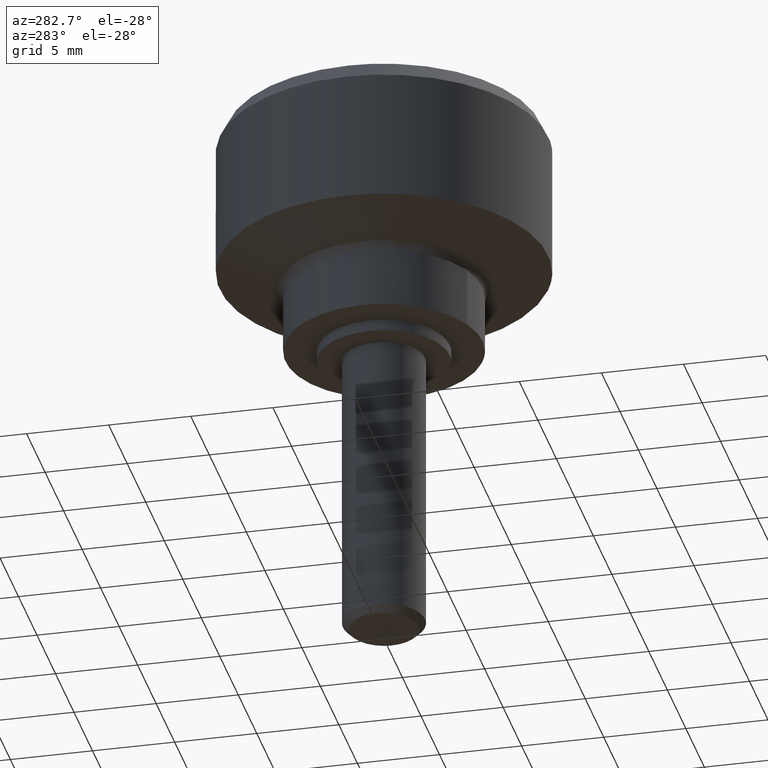
[diagram: clean part render]
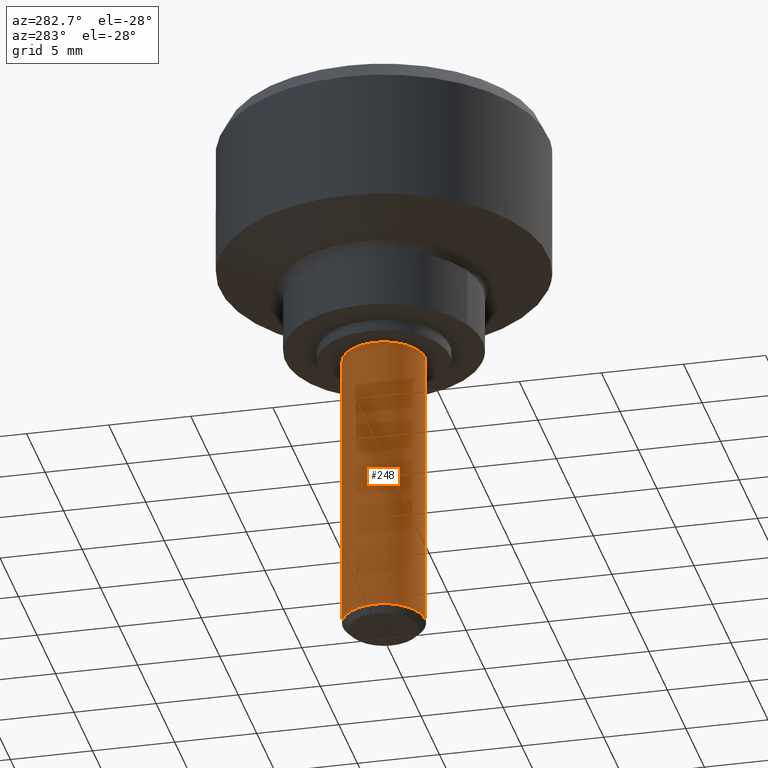
[diagram: same view with one face highlighted and labeled with its STEP entity id]
A machine part, auxiliary view. The second image highlights one B-rep face of the part: STEP entity #248.
In plain terms, the highlighted face is a freeform B-spline surface patch.
Its self-contained STEP definition (entity closure, byte-faithful):
#62=CARTESIAN_POINT('',(0.285251661908175,2.483672983582706,-17.599997999999999));
#63=VERTEX_POINT('',#62);
#79=CARTESIAN_POINT('',(0.285251661873230,2.483672983586720,5.917144E-016));
#80=VERTEX_POINT('',#79);
#81=CARTESIAN_POINT('',(0.285251661873230,2.483672983586720,5.917144E-016));
#82=CARTESIAN_POINT('',(0.285251661908175,2.483672983582706,-17.599997999999999));
#83=QUASI_UNIFORM_CURVE('',1,(#81,#82),.UNSPECIFIED.,.F.,.U.);
#84=EDGE_CURVE('',#80,#63,#83,.T.);
#101=CARTESIAN_POINT('',(0.152621348876395,-2.495336996052266,6.106227E-016));
#102=VERTEX_POINT('',#101);
#116=CARTESIAN_POINT('',(0.174384544100532,-2.493815165194874,-17.599997999997129));
#117=VERTEX_POINT('',#116);
#118=CARTESIAN_POINT('',(0.152621348876395,-2.495336996052266,6.106227E-016));
#119=CARTESIAN_POINT('',(0.174384544100532,-2.493815165194874,-17.599997999997129));
#120=QUASI_UNIFORM_CURVE('',1,(#118,#119),.UNSPECIFIED.,.F.,.U.);
#121=EDGE_CURVE('',#102,#117,#120,.T.);
#139=CARTESIAN_POINT('',(0.211333952939747,-2.491745979351895,0.439999950000001));
#140=CARTESIAN_POINT('',(0.182121404675547,-2.493532695345005,0.439999950000001));
#141=CARTESIAN_POINT('',(-2.342715647217524,-2.647958344891809,0.439999950000000));
#142=CARTESIAN_POINT('',(-2.495336996054667,-0.152621348837143,0.439999950000000));
#143=CARTESIAN_POINT('',(-2.647958344891809,2.342715647217524,0.439999950000000));
#144=CARTESIAN_POINT('',(-0.152621348837143,2.495336996054667,0.439999950000000));
#145=CARTESIAN_POINT('',(0.066828045241367,2.508759095986944,0.439999950000001));
#146=CARTESIAN_POINT('',(0.305203193717239,2.481381535536763,0.439999950000001));
#147=CARTESIAN_POINT('',(0.325255889499010,2.479078468734436,0.439999950000000));
#148=CARTESIAN_POINT('',(0.211333952939747,-2.491745979351895,-18.050997948750016));
#149=CARTESIAN_POINT('',(0.182121404675547,-2.493532695345005,-18.050997948750005));
#150=CARTESIAN_POINT('',(-2.342715647217524,-2.647958344891809,-18.050997948750005));
#151=CARTESIAN_POINT('',(-2.495336996054667,-0.152621348837143,-18.050997948750009));
#152=CARTESIAN_POINT('',(-2.647958344891809,2.342715647217524,-18.050997948750005));
#153=CARTESIAN_POINT('',(-0.152621348837143,2.495336996054667,-18.050997948750009));
#154=CARTESIAN_POINT('',(0.066828045241367,2.508759095986944,-18.050997948749998));
#155=CARTESIAN_POINT('',(0.305203193717239,2.481381535536763,-18.050997948749998));
#156=CARTESIAN_POINT('',(0.325255889499010,2.479078468734436,-18.050997948749998));
#164=(BOUNDED_SURFACE()B_SPLINE_SURFACE(2,1,((#139,#148),(#140,#149),(#141,#150),(#142,#151),(#143,#152),(#144,#153),(#145,#154),(#146,#155),(#147,#156)),.UNSPECIFIED.,.F.,.F.,.U.)B_SPLINE_SURFACE_WITH_KNOTS((3,1,2,2,1,3),(2,2),(0.0,0.069592886428294,4.211728510159243,8.353864133890193,8.850920408737908,8.894954837716457),(0.0,18.490997898750010),.UNSPECIFIED.)GEOMETRIC_REPRESENTATION_ITEM()RATIONAL_B_SPLINE_SURFACE(((1.009841920383158,1.009841920383158),(1.004920960191579,1.004920960191579),(0.707106781186548,0.707106781186548),(1.0,1.0),(0.707106781186548,0.707106781186548),(1.0,1.0),(0.964852813742386,0.964852813742386),(0.935774536893031,0.935774536893031),(0.933408121599464,0.933408121599464)))REPRESENTATION_ITEM('')SURFACE());
#165=CARTESIAN_POINT('',(-0.196147739363922,2.492293334335082,-17.599997999994269));
#166=VERTEX_POINT('',#165);
#167=CARTESIAN_POINT('',(-0.196147739363922,2.492293334335082,-17.599997999994265));
#168=CARTESIAN_POINT('',(-0.098225267563237,2.500000000000000,-17.599997999999999));
#169=CARTESIAN_POINT('',(0.0,2.500000000000000,-17.599997999999999));
#170=CARTESIAN_POINT('',(0.143093087621069,2.500000000000000,-17.599998000000003));
#171=CARTESIAN_POINT('',(0.285251661908175,2.483672983582706,-17.599997999999999));
#179=(BOUNDED_CURVE()B_SPLINE_CURVE(2,(#167,#168,#169,#170,#171),.UNSPECIFIED.,.F.,.U.)B_SPLINE_CURVE_WITH_KNOTS((3,2,3),(0.236331300626733,0.250000000000000,0.269767755884414),.UNSPECIFIED.)CURVE()GEOMETRIC_REPRESENTATION_ITEM()RATIONAL_B_SPLINE_CURVE((0.969723356159224,0.983986122574282,1.0,0.976840633401181,0.957343736445268))REPRESENTATION_ITEM(''));
#180=EDGE_CURVE('',#166,#63,#179,.T.);
#181=ORIENTED_EDGE('',*,*,#180,.F.);
#182=CARTESIAN_POINT('',(-2.500000000000000,0.0,-17.599997999999999));
#183=VERTEX_POINT('',#182);
#184=CARTESIAN_POINT('',(-2.500000000000000,0.0,-17.599997999999999));
#185=CARTESIAN_POINT('',(-2.500000000000000,2.310976229063931,-17.599997999999999));
#186=CARTESIAN_POINT('',(-0.196147739363922,2.492293334335082,-17.599997999994269));
#194=(BOUNDED_CURVE()B_SPLINE_CURVE(2,(#184,#185,#186),.UNSPECIFIED.,.F.,.U.)B_SPLINE_CURVE_WITH_KNOTS((3,3),(0.0,0.236331300626734),.UNSPECIFIED.)CURVE()GEOMETRIC_REPRESENTATION_ITEM()RATIONAL_B_SPLINE_CURVE((1.0,0.723120658612265,0.969723356159224))REPRESENTATION_ITEM(''));
#195=EDGE_CURVE('',#183,#166,#194,.T.);
#196=ORIENTED_EDGE('',*,*,#195,.F.);
#197=CARTESIAN_POINT('',(0.174384544100532,-2.493815165194874,-17.599997999997129));
#198=CARTESIAN_POINT('',(0.087295391576163,-2.499906585699807,-17.599997999997179));
#199=CARTESIAN_POINT('',(-0.000006416222384,-2.499908243745854,-17.599997999997228));
#200=CARTESIAN_POINT('',(-2.500003096081481,-2.499955723972427,-17.599997999998664));
#201=CARTESIAN_POINT('',(-2.500000000000000,0.0,-17.599997999999999));
#209=(BOUNDED_CURVE()B_SPLINE_CURVE(2,(#197,#198,#199,#200,#201),.UNSPECIFIED.,.F.,.U.)B_SPLINE_CURVE_WITH_KNOTS((3,2,3),(0.737829682995448,0.750000000000000,1.0),.UNSPECIFIED.)CURVE()GEOMETRIC_REPRESENTATION_ITEM()RATIONAL_B_SPLINE_CURVE((0.972871408705811,0.985741586714226,1.0,0.707106781186548,1.0))REPRESENTATION_ITEM(''));
#210=EDGE_CURVE('',#117,#183,#209,.T.);
#211=ORIENTED_EDGE('',*,*,#210,.F.);
#212=ORIENTED_EDGE('',*,*,#121,.F.);
#213=CARTESIAN_POINT('',(-2.500000000000000,0.0,0.0));
#214=VERTEX_POINT('',#213);
#215=CARTESIAN_POINT('',(0.152621348876395,-2.495336996052267,6.106227E-016));
#216=CARTESIAN_POINT('',(0.076381908285835,-2.500000000000000,0.0));
#217=CARTESIAN_POINT('',(0.0,-2.500000000000000,0.0));
#218=CARTESIAN_POINT('',(-2.500000000000000,-2.500000000000000,0.0));
#219=CARTESIAN_POINT('',(-2.500000000000000,0.0,0.0));
#227=(BOUNDED_CURVE()B_SPLINE_CURVE(2,(#215,#216,#217,#218,#219),.UNSPECIFIED.,.F.,.U.)B_SPLINE_CURVE_WITH_KNOTS((3,2,3),(0.739332962236540,0.750000000000000,1.0),.UNSPECIFIED.)CURVE()GEOMETRIC_REPRESENTATION_ITEM()RATIONAL_B_SPLINE_CURVE((0.976072041661568,0.987502787897022,1.0,0.707106781186548,1.0))REPRESENTATION_ITEM(''));
#228=EDGE_CURVE('',#102,#214,#227,.T.);
#229=ORIENTED_EDGE('',*,*,#228,.T.);
#230=CARTESIAN_POINT('',(-2.500000000000000,0.0,0.0));
#231=CARTESIAN_POINT('',(-2.500000000000000,2.500000000000000,0.0));
#232=CARTESIAN_POINT('',(0.0,2.500000000000000,0.0));
#233=CARTESIAN_POINT('',(0.143093087585781,2.500000000000000,0.0));
#234=CARTESIAN_POINT('',(0.285251661873230,2.483672983586720,5.917144E-016));
#242=(BOUNDED_CURVE()B_SPLINE_CURVE(2,(#230,#231,#232,#233,#234),.UNSPECIFIED.,.F.,.U.)B_SPLINE_CURVE_WITH_KNOTS((3,2,3),(0.0,0.250000000000000,0.269767755879652),.UNSPECIFIED.)CURVE()GEOMETRIC_REPRESENTATION_ITEM()RATIONAL_B_SPLINE_CURVE((1.0,0.707106781186548,1.0,0.976840633406760,0.957343736454661))REPRESENTATION_ITEM(''));
#243=EDGE_CURVE('',#214,#80,#242,.T.);
#244=ORIENTED_EDGE('',*,*,#243,.T.);
#245=ORIENTED_EDGE('',*,*,#84,.T.);
#246=EDGE_LOOP('',(#181,#196,#211,#212,#229,#244,#245));
#247=FACE_OUTER_BOUND('',#246,.T.);
#248=ADVANCED_FACE('',(#247),#164,.T.);